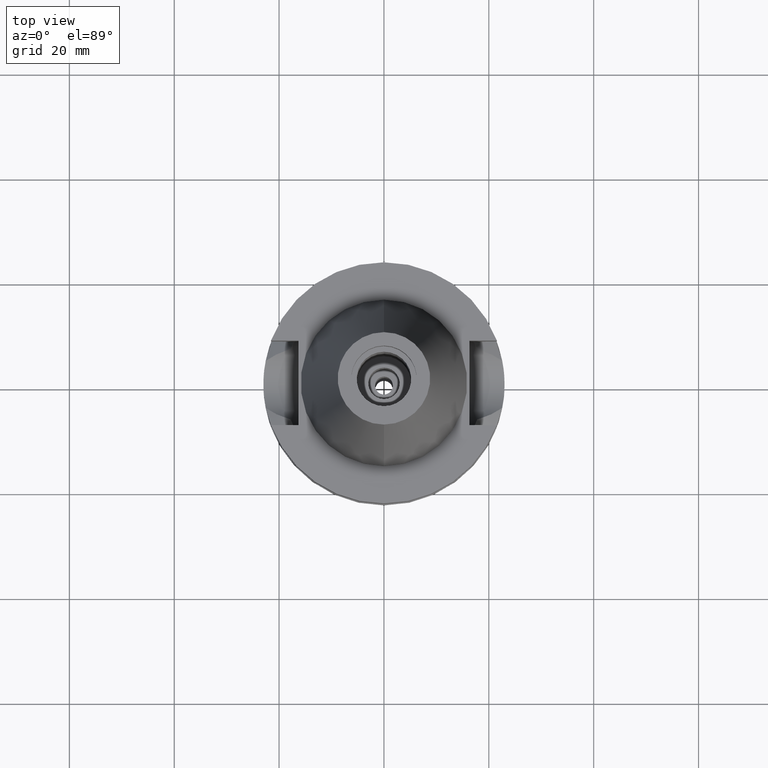
[diagram: clean part render]
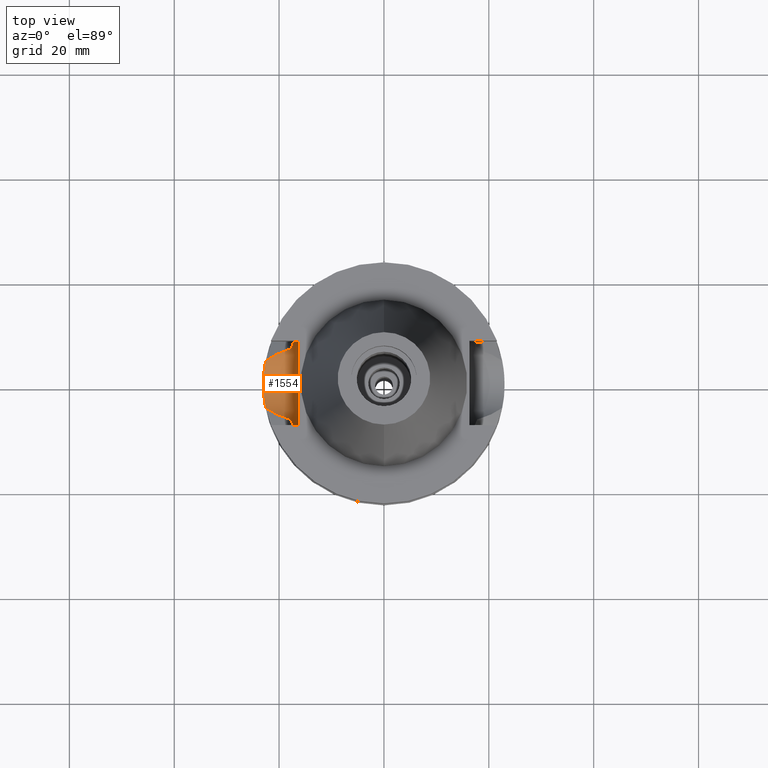
[diagram: same view with one face highlighted and labeled with its STEP entity id]
A machine part, top view. The second image highlights one B-rep face of the part: STEP entity #1554.
In plain terms, the highlighted cylindrical surface (partial cylindrical patch) has radius 8.05 mm, axis along (-1, 0, 0).
Its self-contained STEP definition (entity closure, byte-faithful):
#8 = EDGE_CURVE ( 'NONE', #2399, #2380, #1310, .T. ) ;
#22 = CARTESIAN_POINT ( 'NONE',  ( -22.81090950435892850, -3.020660139477805650, -18.44495556385144752 ) ) ;
#34 = CARTESIAN_POINT ( 'NONE',  ( -22.92452651903368732, -1.864440089662114941, -18.78174785949831360 ) ) ;
#50 = EDGE_CURVE ( 'NONE', #184, #1316, #876, .T. ) ;
#89 = CARTESIAN_POINT ( 'NONE',  ( -17.23531135277999837, 7.996501749842999551, -11.87660739337000138 ) ) ;
#103 = CARTESIAN_POINT ( 'NONE',  ( -17.32020187217933582, 7.811452264630837306, -12.90108126107629083 ) ) ;
#112 = VECTOR ( 'NONE', #1319, 1000.000000000000114 ) ;
#162 = B_SPLINE_CURVE_WITH_KNOTS ( 'NONE', 3,
 ( #416, #1333, #2254, #2938, #706, #2296, #2310, #241, #1391, #2839, #2532, #1689, #2152, #256, #1155, #2081, #2093, #2738, #229, #34, #1229, #318, #2282, #1618, #678, #22, #1707, #2765 ),
 .UNSPECIFIED., .F., .F.,
 ( 4, 2, 2, 1, 1, 2, 2, 2, 2, 2, 2, 1, 1, 2, 2, 4 ),
 ( 0.0000000000000000000, 0.1249999999999997502, 0.1874999999999996114, 0.2187499999999995559, 0.2343749999999995837, 0.2421874999999995559, 0.2499999999999995004, 0.3749999999999993339, 0.4999999999999992228, 0.6249999999999991118, 0.6874999999999992228, 0.7187499999999992228, 0.7343749999999991118, 0.7421874999999991118, 0.7499999999999990008, 1.000000000000000000 ),
 .UNSPECIFIED. ) ;
#184 = VERTEX_POINT ( 'NONE', #2545 ) ;
#186 = DIRECTION ( 'NONE',  ( 1.000000000000000000, 0.0000000000000000000, 0.0000000000000000000 ) ) ;
#213 = DIRECTION ( 'NONE',  ( 0.0000000000000000000, 0.0000000000000000000, -1.000000000000000000 ) ) ;
#221 = EDGE_CURVE ( 'NONE', #1315, #1277, #1312, .T. ) ;
#229 = CARTESIAN_POINT ( 'NONE',  ( -22.94689091153284011, -1.573058889686103967, -18.84731797893200067 ) ) ;
#241 = CARTESIAN_POINT ( 'NONE',  ( -22.86794343886938563, 2.462635580312943162, -18.61430130011902051 ) ) ;
#256 = CARTESIAN_POINT ( 'NONE',  ( -22.99091311577695862, 0.7497282923762758067, -18.97473017844741960 ) ) ;
#304 = AXIS2_PLACEMENT_3D ( 'NONE', #650, #186, #859 ) ;
#306 = CARTESIAN_POINT ( 'NONE',  ( -21.37344794599816566, 5.343258989401068249, -17.05846002345834833 ) ) ;
#310 = CARTESIAN_POINT ( 'NONE',  ( -17.41029288300903133, 7.608179589641981266, -13.58035844438658835 ) ) ;
#318 = CARTESIAN_POINT ( 'NONE',  ( -22.89669828391529549, -2.179393510331105510, -18.69965599748576324 ) ) ;
#348 = DIRECTION ( 'NONE',  ( 0.9999999999998816502, -4.791475824996909035E-07, -8.421487467950838188E-08 ) ) ;
#397 = VECTOR ( 'NONE', #348, 1000.000000000000114 ) ;
#416 = CARTESIAN_POINT ( 'NONE',  ( -22.55786346208000026, 4.488072640470000430, -17.63279163029000074 ) ) ;
#431 = CARTESIAN_POINT ( 'NONE',  ( -17.53683850617338180, -7.312769253781011614, -14.31902481030247465 ) ) ;
#553 = VERTEX_POINT ( 'NONE', #779 ) ;
#554 = CARTESIAN_POINT ( 'NONE',  ( -17.41455400308252521, 7.598412036672769432, -13.60833259774248027 ) ) ;
#586 = CARTESIAN_POINT ( 'NONE',  ( -17.61322740993515623, 7.137115851997321236, -14.73814199281789783 ) ) ;
#635 = CARTESIAN_POINT ( 'NONE',  ( -16.29999999999999716, -8.050000000000000711, -10.94999999999999929 ) ) ;
#650 = CARTESIAN_POINT ( 'NONE',  ( -16.29999999999999716, 1.981478521019999946E-14, -10.94999999999999929 ) ) ;
#664 = ORIENTED_EDGE ( 'NONE', *, *, #2430, .F. ) ;
#673 = CARTESIAN_POINT ( 'NONE',  ( -17.43825996256478561, -7.543902337133847169, -13.75966030973273391 ) ) ;
#678 = CARTESIAN_POINT ( 'NONE',  ( -22.88222545003983299, -2.325754591121353076, -18.65674056898770417 ) ) ;
#698 = EDGE_CURVE ( 'NONE', #2916, #184, #2657, .T. ) ;
#706 = CARTESIAN_POINT ( 'NONE',  ( -22.80216122445831672, 3.013364605910849203, -18.41714078182661751 ) ) ;
#717 = CARTESIAN_POINT ( 'NONE',  ( -17.42163631456515205, -7.582155995879247712, -13.65434988440541630 ) ) ;
#719 = CARTESIAN_POINT ( 'NONE',  ( -17.75736593456000278, 6.758398853743999624, -15.32339055352999857 ) ) ;
#721 = ORIENTED_EDGE ( 'NONE', *, *, #2286, .T. ) ;
#771 = CARTESIAN_POINT ( 'NONE',  ( -17.33753429444990957, 7.772924035876698667, -13.04956638904976884 ) ) ;
#779 = CARTESIAN_POINT ( 'NONE',  ( -18.96738966518000069, -8.049994318073999011, -10.95000099924000025 ) ) ;
#804 = VERTEX_POINT ( 'NONE', #1940 ) ;
#814 = CARTESIAN_POINT ( 'NONE',  ( -22.55786346208000026, -4.488072640470000430, -17.63279163029000074 ) ) ;
#816 = CARTESIAN_POINT ( 'NONE',  ( -17.23531135277999837, 7.996501749842999551, -11.87660739337000138 ) ) ;
#840 = CARTESIAN_POINT ( 'NONE',  ( -17.23531622822000386, -7.996491147957000223, -11.87660607717000083 ) ) ;
#859 = DIRECTION ( 'NONE',  ( 0.0000000000000000000, 0.0000000000000000000, -1.000000000000000000 ) ) ;
#876 = B_SPLINE_CURVE_WITH_KNOTS ( 'NONE', 3,
 ( #917, #2048, #2751, #431, #906, #2736, #1109, #673, #2709, #2950, #2320, #717, #1438, #2104, #1876 ),
 .UNSPECIFIED., .F., .F.,
 ( 4, 2, 2, 1, 1, 1, 2, 2, 4 ),
 ( 0.0000000000000000000, 0.2500000000000069944, 0.3750000000000109357, 0.4375000000000131006, 0.4687500000000142664, 0.4843750000000146549, 0.4921875000000139888, 0.5000000000000133227, 1.000000000000000000 ),
 .UNSPECIFIED. ) ;
#906 = CARTESIAN_POINT ( 'NONE',  ( -17.51072787951608589, -7.374839633763387248, -14.18046796376581042 ) ) ;
#917 = CARTESIAN_POINT ( 'NONE',  ( -17.75736593456000278, -6.758398853743999624, -15.32339055352999857 ) ) ;
#1036 = CARTESIAN_POINT ( 'NONE',  ( -17.23531622822000386, -7.996491147957000223, -11.87660607717000083 ) ) ;
#1044 = CARTESIAN_POINT ( 'NONE',  ( -17.38156622591649025, 7.673725377166832118, -13.38458314266547866 ) ) ;
#1049 = CARTESIAN_POINT ( 'NONE',  ( -18.96738966518000069, -8.049994318073999011, -10.95000099924000025 ) ) ;
#1057 = ORIENTED_EDGE ( 'NONE', *, *, #50, .T. ) ;
#1097 = EDGE_CURVE ( 'NONE', #1277, #2916, #162, .T. ) ;
#1109 = CARTESIAN_POINT ( 'NONE',  ( -17.45719485031016305, -7.500152504364808514, -13.87559139676806197 ) ) ;
#1155 = CARTESIAN_POINT ( 'NONE',  ( -23.00039156857199529, 0.3574856676285192436, -19.00115234547187271 ) ) ;
#1158 = ORIENTED_EDGE ( 'NONE', *, *, #221, .T. ) ;
#1214 = B_SPLINE_CURVE_WITH_KNOTS ( 'NONE', 3,
 ( #840, #1278, #2204, #1049 ),
 .UNSPECIFIED., .F., .F.,
 ( 4, 4 ),
 ( 0.0000000000000000000, 1.000000000000000000 ),
 .UNSPECIFIED. ) ;
#1219 = CARTESIAN_POINT ( 'NONE',  ( -17.25079912548184780, 7.963111191691066182, -12.16468723194739887 ) ) ;
#1229 = CARTESIAN_POINT ( 'NONE',  ( -22.91242513727492636, -2.010000392856797546, -18.74615227866073042 ) ) ;
#1235 = CARTESIAN_POINT ( 'NONE',  ( -17.40050758142161058, 7.630565565654147342, -13.51508960571536377 ) ) ;
#1254 = CARTESIAN_POINT ( 'NONE',  ( -18.96736186712000105, 8.050001278060001653, -10.94999977536999936 ) ) ;
#1274 = CARTESIAN_POINT ( 'NONE',  ( -17.36640948863165690, 7.707982828529774011, -13.27282317180509708 ) ) ;
#1277 = VERTEX_POINT ( 'NONE', #2660 ) ;
#1278 = CARTESIAN_POINT ( 'NONE',  ( -17.72598979651871431, -8.027133611787540701, -11.61218201649007931 ) ) ;
#1305 = CARTESIAN_POINT ( 'NONE',  ( -18.96736186712000105, 8.050001278060001653, -10.94999977536999936 ) ) ;
#1310 = CIRCLE ( 'NONE', #304, 8.050000000000000711 ) ;
#1312 = B_SPLINE_CURVE_WITH_KNOTS ( 'NONE', 3,
 ( #719, #2360, #306, #1630 ),
 .UNSPECIFIED., .F., .F.,
 ( 4, 4 ),
 ( 0.0000000000000000000, 1.000000000000000000 ),
 .UNSPECIFIED. ) ;
#1315 = VERTEX_POINT ( 'NONE', #1488 ) ;
#1316 = VERTEX_POINT ( 'NONE', #1036 ) ;
#1319 = DIRECTION ( 'NONE',  ( -0.9999999999976610932, 2.130144643078915515E-06, -3.746150158076855913E-07 ) ) ;
#1333 = CARTESIAN_POINT ( 'NONE',  ( -22.63189142318178071, 4.115994741427911663, -17.88267412419282110 ) ) ;
#1391 = CARTESIAN_POINT ( 'NONE',  ( -22.87476863915686920, 2.398004322044775094, -18.63456771831305048 ) ) ;
#1438 = CARTESIAN_POINT ( 'NONE',  ( -17.32791110613140617, -7.797407457908311912, -13.04850003618886589 ) ) ;
#1481 = CARTESIAN_POINT ( 'NONE',  ( -17.75736593456000278, 6.758398853743999624, -15.32339055352999857 ) ) ;
#1488 = CARTESIAN_POINT ( 'NONE',  ( -17.75736593456000278, 6.758398853743999624, -15.32339055352999857 ) ) ;
#1498 = CARTESIAN_POINT ( 'NONE',  ( -18.30417674803561212, 8.050000009835176940, -11.30245975391281377 ) ) ;
#1507 = B_SPLINE_CURVE_WITH_KNOTS ( 'NONE', 3,
 ( #1254, #1498, #2876, #816 ),
 .UNSPECIFIED., .F., .F.,
 ( 4, 4 ),
 ( 0.0000000000000000000, 1.000000000000000000 ),
 .UNSPECIFIED. ) ;
#1512 = VERTEX_POINT ( 'NONE', #2526 ) ;
#1554 = ADVANCED_FACE ( 'NONE', ( #1584 ), #2499, .F. ) ;
#1584 = FACE_OUTER_BOUND ( 'NONE', #2704, .T. ) ;
#1618 = CARTESIAN_POINT ( 'NONE',  ( -22.88481372749418341, -2.300171923789940731, -18.66442433885055152 ) ) ;
#1622 = B_SPLINE_CURVE_WITH_KNOTS ( 'NONE', 3,
 ( #89, #1219, #2625, #103, #771, #1274, #1044, #1235, #310, #554, #2386, #1728, #1941, #586, #1481 ),
 .UNSPECIFIED., .F., .F.,
 ( 4, 2, 2, 1, 1, 1, 2, 2, 4 ),
 ( 0.0000000000000000000, 0.2499999999999997780, 0.3750000000000003331, 0.4375000000000007772, 0.4687500000000009992, 0.4843750000000016653, 0.4921875000000012768, 0.5000000000000008882, 1.000000000000000000 ),
 .UNSPECIFIED. ) ;
#1630 = CARTESIAN_POINT ( 'NONE',  ( -22.55786346208000026, 4.488072640470000430, -17.63279163029000074 ) ) ;
#1647 = AXIS2_PLACEMENT_3D ( 'NONE', #1792, #2949, #213 ) ;
#1689 = CARTESIAN_POINT ( 'NONE',  ( -22.92290420593985800, 1.923070217425080441, -18.77739314731616815 ) ) ;
#1707 = CARTESIAN_POINT ( 'NONE',  ( -22.70350920479332402, -3.756030839612359173, -18.12442102109928044 ) ) ;
#1712 = CARTESIAN_POINT ( 'NONE',  ( -21.37344794600128139, -5.343258989407187798, -17.05846002345420942 ) ) ;
#1728 = CARTESIAN_POINT ( 'NONE',  ( -17.41902886909256765, 7.588145056433622138, -13.63749496353904789 ) ) ;
#1780 = ORIENTED_EDGE ( 'NONE', *, *, #8, .T. ) ;
#1788 = ORIENTED_EDGE ( 'NONE', *, *, #1803, .F. ) ;
#1792 = CARTESIAN_POINT ( 'NONE',  ( -16.29999999999999716, 1.981478521019999946E-14, -10.94999999999999929 ) ) ;
#1803 = EDGE_CURVE ( 'NONE', #804, #2380, #2868, .T. ) ;
#1864 = EDGE_CURVE ( 'NONE', #1316, #553, #1214, .T. ) ;
#1876 = CARTESIAN_POINT ( 'NONE',  ( -17.23531622822000386, -7.996491147957000223, -11.87660607717000083 ) ) ;
#1940 = CARTESIAN_POINT ( 'NONE',  ( -18.96736186712000105, 8.050001278060001653, -10.94999977536999936 ) ) ;
#1941 = CARTESIAN_POINT ( 'NONE',  ( -17.50086807635505437, 7.400179108355223079, -14.16641331494752265 ) ) ;
#1995 = ORIENTED_EDGE ( 'NONE', *, *, #1864, .T. ) ;
#2020 = CARTESIAN_POINT ( 'NONE',  ( -16.29999999999999716, 8.050000000000000711, -10.94999999999999929 ) ) ;
#2048 = CARTESIAN_POINT ( 'NONE',  ( -17.68527465925302167, -6.947815190961516230, -15.03067689334821111 ) ) ;
#2081 = CARTESIAN_POINT ( 'NONE',  ( -22.99958106116206835, -0.4076252345673274657, -18.99876958054464637 ) ) ;
#2093 = CARTESIAN_POINT ( 'NONE',  ( -22.98937116202579745, -0.7953693437423644541, -18.97024549781760427 ) ) ;
#2104 = CARTESIAN_POINT ( 'NONE',  ( -17.26628505277755110, -7.929743581422772358, -12.45264543983569538 ) ) ;
#2152 = CARTESIAN_POINT ( 'NONE',  ( -22.95216769459096895, 1.531412477562041241, -18.86284795587792829 ) ) ;
#2172 = CARTESIAN_POINT ( 'NONE',  ( -22.55786346208000026, -4.488072640470000430, -17.63279163029000074 ) ) ;
#2204 = CARTESIAN_POINT ( 'NONE',  ( -18.30334760883871681, -8.049999956192763761, -11.30291655558728969 ) ) ;
#2254 = CARTESIAN_POINT ( 'NONE',  ( -22.69605003532569043, 3.742246044203677791, -18.08863916492518698 ) ) ;
#2269 = CARTESIAN_POINT ( 'NONE',  ( -16.29999999999999716, -8.050000000000000711, -10.94999999999999929 ) ) ;
#2282 = CARTESIAN_POINT ( 'NONE',  ( -22.88961350933808347, -2.251877145771301159, -18.67865985014182328 ) ) ;
#2286 = EDGE_CURVE ( 'NONE', #1512, #1315, #1622, .T. ) ;
#2296 = CARTESIAN_POINT ( 'NONE',  ( -22.83547616012945269, 2.746788174406962657, -18.51747442353667594 ) ) ;
#2310 = CARTESIAN_POINT ( 'NONE',  ( -22.85120837650022096, 2.614614927726636839, -18.56452983978513416 ) ) ;
#2320 = CARTESIAN_POINT ( 'NONE',  ( -17.42272085251634195, -7.579664040962321714, -13.66132223661288592 ) ) ;
#2345 = EDGE_CURVE ( 'NONE', #804, #1512, #1507, .T. ) ;
#2360 = CARTESIAN_POINT ( 'NONE',  ( -19.77328210349149629, 6.137069160748970020, -16.28355951935644441 ) ) ;
#2380 = VERTEX_POINT ( 'NONE', #2020 ) ;
#2386 = CARTESIAN_POINT ( 'NONE',  ( -17.41740973188558073, 7.591861673428697443, -13.62698225821507236 ) ) ;
#2399 = VERTEX_POINT ( 'NONE', #2269 ) ;
#2430 = EDGE_CURVE ( 'NONE', #2399, #553, #2699, .T. ) ;
#2494 = ORIENTED_EDGE ( 'NONE', *, *, #1097, .T. ) ;
#2499 = CYLINDRICAL_SURFACE ( 'NONE', #1647, 8.050000000000000711 ) ;
#2526 = CARTESIAN_POINT ( 'NONE',  ( -17.23531135277999837, 7.996501749842999551, -11.87660739337000138 ) ) ;
#2532 = CARTESIAN_POINT ( 'NONE',  ( -22.88130279756130392, 2.334968719018098771, -18.65396397037062570 ) ) ;
#2545 = CARTESIAN_POINT ( 'NONE',  ( -17.75736593456000278, -6.758398853743999624, -15.32339055352999857 ) ) ;
#2611 = CARTESIAN_POINT ( 'NONE',  ( -19.77328210349461557, -6.137069160752957941, -16.28355951935022006 ) ) ;
#2625 = CARTESIAN_POINT ( 'NONE',  ( -17.27395772691940579, 7.913379800923332930, -12.45762674626540623 ) ) ;
#2637 = CARTESIAN_POINT ( 'NONE',  ( -17.75736593456000278, -6.758398853743999624, -15.32339055352999857 ) ) ;
#2657 = B_SPLINE_CURVE_WITH_KNOTS ( 'NONE', 3,
 ( #814, #1712, #2611, #2637 ),
 .UNSPECIFIED., .F., .F.,
 ( 4, 4 ),
 ( 0.0000000000000000000, 1.000000000000000000 ),
 .UNSPECIFIED. ) ;
#2660 = CARTESIAN_POINT ( 'NONE',  ( -22.55786346208000026, 4.488072640470000430, -17.63279163029000074 ) ) ;
#2699 = LINE ( 'NONE', #635, #112 ) ;
#2704 = EDGE_LOOP ( 'NONE', ( #1057, #1995, #664, #1780, #1788, #2769, #721, #1158, #2494, #2945 ) ) ;
#2709 = CARTESIAN_POINT ( 'NONE',  ( -17.42911851124039657, -7.564954524494937438, -13.70217975917803876 ) ) ;
#2736 = CARTESIAN_POINT ( 'NONE',  ( -17.47454244282899083, -7.459747681758726934, -13.97656327319555913 ) ) ;
#2738 = CARTESIAN_POINT ( 'NONE',  ( -22.95934934517444503, -1.378459520420494133, -18.88353401140495436 ) ) ;
#2751 = CARTESIAN_POINT ( 'NONE',  ( -17.62113139274299556, -7.108367418559089934, -14.74095000872901551 ) ) ;
#2765 = CARTESIAN_POINT ( 'NONE',  ( -22.55786346208000026, -4.488072640470000430, -17.63279163029000074 ) ) ;
#2769 = ORIENTED_EDGE ( 'NONE', *, *, #2345, .T. ) ;
#2839 = CARTESIAN_POINT ( 'NONE',  ( -22.87924166839312079, 2.355031409892764049, -18.64784598470915711 ) ) ;
#2868 = LINE ( 'NONE', #1305, #397 ) ;
#2876 = CARTESIAN_POINT ( 'NONE',  ( -17.72682657658894456, 8.027186145136633755, -11.61172868551800086 ) ) ;
#2916 = VERTEX_POINT ( 'NONE', #2172 ) ;
#2938 = CARTESIAN_POINT ( 'NONE',  ( -22.77748393010476136, 3.194066890532781144, -18.34195206588847427 ) ) ;
#2945 = ORIENTED_EDGE ( 'NONE', *, *, #698, .T. ) ;
#2949 = DIRECTION ( 'NONE',  ( -1.000000000000000000, 0.0000000000000000000, 0.0000000000000000000 ) ) ;
#2950 = CARTESIAN_POINT ( 'NONE',  ( -17.42527060193316046, -7.573803216174606945, -13.67765102006688593 ) ) ;